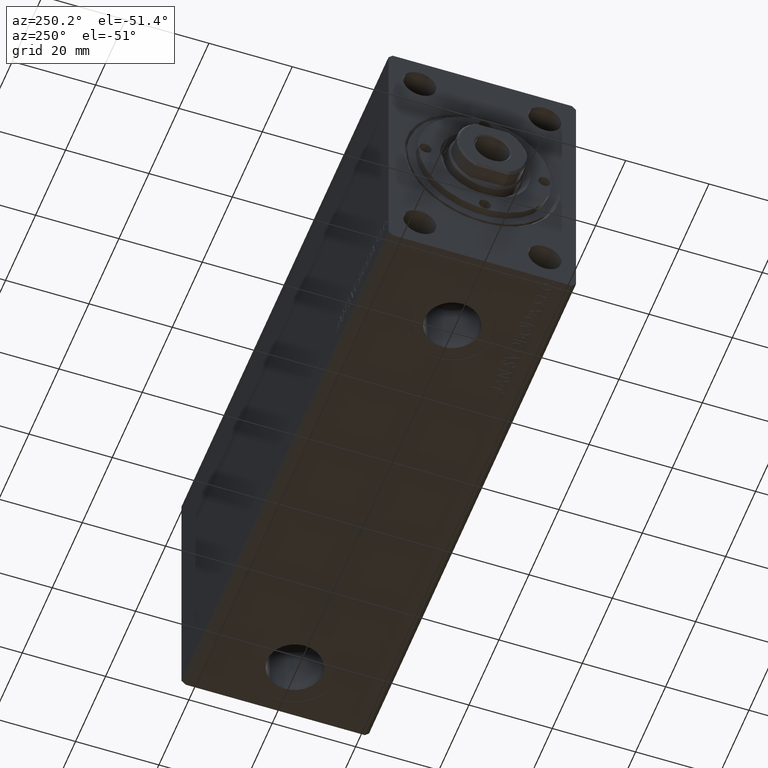
[diagram: clean part render]
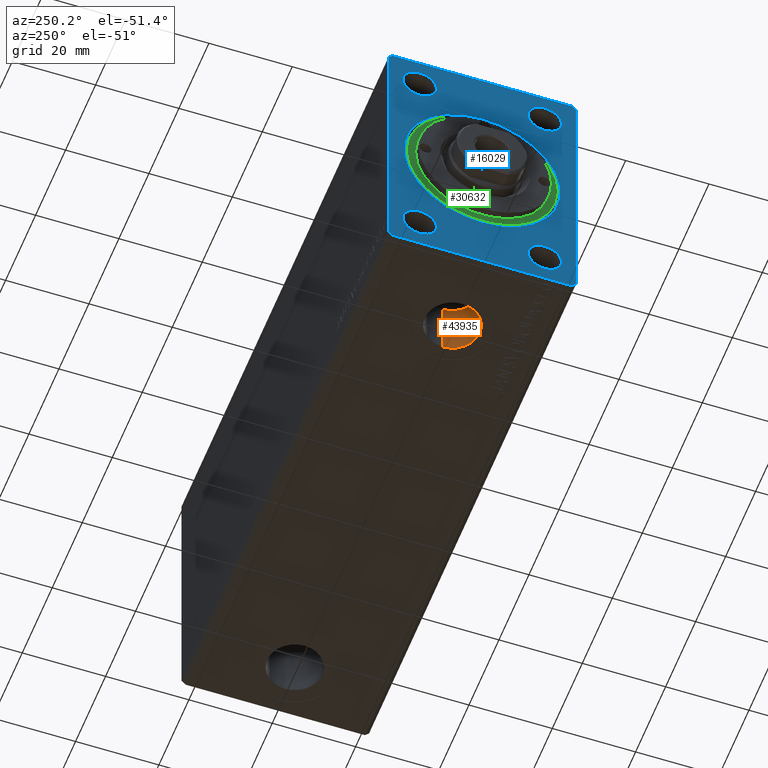
[diagram: same view with three faces highlighted in distinct colors, each labeled with its STEP entity id]
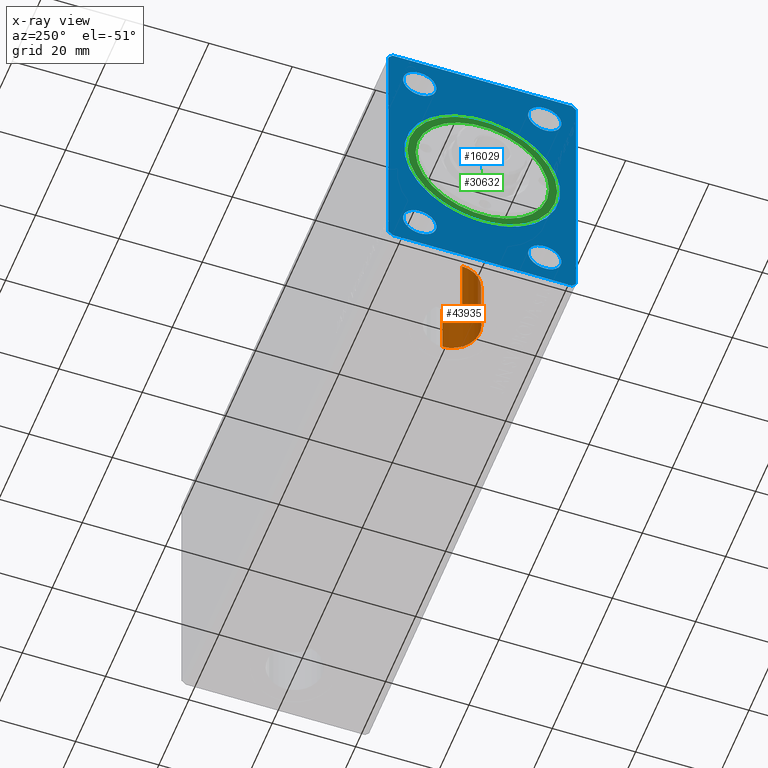
[diagram: x-ray of the same camera — body ghosted, the three highlighted faces saturated]
A machine part, auxiliary view with three faces highlighted in distinct colors.
The next image is the same camera in x-ray (body ghosted, the three faces saturated) — at least one of them is partly hidden behind the body in this view.
Their STEP definitions:

[orange] entity #43935 — the highlighted cylindrical surface (edge-blend (fillet) strip) has radius 6.58 mm, axis along (-0, -0, -1).
#199 = CYLINDRICAL_SURFACE ( 'NONE', #40097, 6.580000000000002736 ) ;
#2723 = EDGE_CURVE ( 'NONE', #35828, #34866, #33913, .T. ) ;
#2820 = CIRCLE ( 'NONE', #42760, 6.580000000000002736 ) ;
#4878 = DIRECTION ( 'NONE',  ( -1.000000000000000000, 0.000000000000000000, 0.000000000000000000 ) ) ;
#4980 = EDGE_CURVE ( 'NONE', #29053, #35828, #34258, .T. ) ;
#6164 = CARTESIAN_POINT ( 'NONE',  ( 13.41999999999999460, 2.578758962896938545E-15, -18.79999999999999716 ) ) ;
#7109 = DIRECTION ( 'NONE',  ( -0.000000000000000000, -0.000000000000000000, -1.000000000000000000 ) ) ;
#9040 = ORIENTED_EDGE ( 'NONE', *, *, #2723, .T. ) ;
#9668 = ORIENTED_EDGE ( 'NONE', *, *, #32509, .F. ) ;
#13143 = CARTESIAN_POINT ( 'NONE',  ( 19.99999999999999645, 2.578758962896938545E-15, -18.79999999999999716 ) ) ;
#14161 = CARTESIAN_POINT ( 'NONE',  ( 26.57999999999999829, 3.384576556735897587E-15, -18.79999999999999716 ) ) ;
#14676 = AXIS2_PLACEMENT_3D ( 'NONE', #32238, #25758, #25545 ) ;
#15436 = CARTESIAN_POINT ( 'NONE',  ( 13.41999999999999460, 2.578758962896938545E-15, -18.79999999999999716 ) ) ;
#16149 = ORIENTED_EDGE ( 'NONE', *, *, #4980, .T. ) ;
#16657 = CARTESIAN_POINT ( 'NONE',  ( 13.41999999999999460, 2.578758962896938545E-15, -32.39999999999999858 ) ) ;
#17700 = EDGE_CURVE ( 'NONE', #25770, #34866, #28609, .T. ) ;
#23415 = DIRECTION ( 'NONE',  ( -1.000000000000000000, 0.000000000000000000, 0.000000000000000000 ) ) ;
#24056 = CARTESIAN_POINT ( 'NONE',  ( 19.99999999999999645, 2.578758962896938545E-15, -18.79999999999999716 ) ) ;
#25545 = DIRECTION ( 'NONE',  ( -1.000000000000000000, 0.000000000000000000, 0.000000000000000000 ) ) ;
#25758 = DIRECTION ( 'NONE',  ( 0.000000000000000000, 0.000000000000000000, -1.000000000000000000 ) ) ;
#25770 = VERTEX_POINT ( 'NONE', #6164 ) ;
#26124 = DIRECTION ( 'NONE',  ( -0.000000000000000000, -0.000000000000000000, -1.000000000000000000 ) ) ;
#26842 = VECTOR ( 'NONE', #33815, 1000.000000000000000 ) ;
#27827 = ORIENTED_EDGE ( 'NONE', *, *, #17700, .F. ) ;
#28609 = LINE ( 'NONE', #15436, #30515 ) ;
#28797 = CARTESIAN_POINT ( 'NONE',  ( 26.57999999999999829, 3.384576556735897587E-15, -32.39999999999999858 ) ) ;
#29053 = VERTEX_POINT ( 'NONE', #42790 ) ;
#30515 = VECTOR ( 'NONE', #26124, 1000.000000000000000 ) ;
#30752 = FACE_OUTER_BOUND ( 'NONE', #38863, .T. ) ;
#32238 = CARTESIAN_POINT ( 'NONE',  ( 19.99999999999999645, 2.578758962896938545E-15, -32.39999999999999858 ) ) ;
#32509 = EDGE_CURVE ( 'NONE', #29053, #25770, #2820, .T. ) ;
#33815 = DIRECTION ( 'NONE',  ( -0.000000000000000000, -0.000000000000000000, -1.000000000000000000 ) ) ;
#33913 = CIRCLE ( 'NONE', #14676, 6.580000000000002736 ) ;
#34258 = LINE ( 'NONE', #14161, #26842 ) ;
#34866 = VERTEX_POINT ( 'NONE', #16657 ) ;
#35828 = VERTEX_POINT ( 'NONE', #28797 ) ;
#38863 = EDGE_LOOP ( 'NONE', ( #9668, #16149, #9040, #27827 ) ) ;
#40097 = AXIS2_PLACEMENT_3D ( 'NONE', #24056, #7109, #4878 ) ;
#40388 = DIRECTION ( 'NONE',  ( 0.000000000000000000, 0.000000000000000000, -1.000000000000000000 ) ) ;
#42760 = AXIS2_PLACEMENT_3D ( 'NONE', #13143, #40388, #23415 ) ;
#42790 = CARTESIAN_POINT ( 'NONE',  ( 26.57999999999999829, 3.384576556735897587E-15, -18.79999999999999716 ) ) ;
#43935 = ADVANCED_FACE ( 'NONE', ( #30752 ), #199, .F. ) ;

[blue] entity #16029 — the highlighted planar face has unit normal (1, 0, 0).
#322 = CARTESIAN_POINT ( 'NONE',  ( 3.061616997868395467E-16, -14.99999999999999645, -28.99999999999999645 ) ) ;
#417 = CARTESIAN_POINT ( 'NONE',  ( 0.000000000000000000, -21.50000000000001776, -32.50000000000000711 ) ) ;
#700 = VERTEX_POINT ( 'NONE', #9322 ) ;
#792 = ORIENTED_EDGE ( 'NONE', *, *, #25214, .T. ) ;
#1295 = FACE_BOUND ( 'NONE', #3102, .T. ) ;
#1510 = LINE ( 'NONE', #15103, #20460 ) ;
#1522 = FACE_BOUND ( 'NONE', #29025, .T. ) ;
#1572 = DIRECTION ( 'NONE',  ( 0.000000000000000000, 0.7071067811865474617, 0.7071067811865474617 ) ) ;
#1710 = CARTESIAN_POINT ( 'NONE',  ( 3.061616997868395467E-16, 15.00000000000000355, 21.00000000000000000 ) ) ;
#1853 = AXIS2_PLACEMENT_3D ( 'NONE', #43355, #39363, #22375 ) ;
#2031 = VECTOR ( 'NONE', #33614, 1000.000000000000114 ) ;
#2884 = DIRECTION ( 'NONE',  ( 0.000000000000000000, -1.000000000000000000, 0.000000000000000000 ) ) ;
#2999 = CARTESIAN_POINT ( 'NONE',  ( 0.000000000000000000, -21.50000000000001776, -32.50000000000000711 ) ) ;
#3000 = DIRECTION ( 'NONE',  ( 0.000000000000000000, 0.000000000000000000, 1.000000000000000000 ) ) ;
#3102 = EDGE_LOOP ( 'NONE', ( #18303, #11740 ) ) ;
#3295 = VECTOR ( 'NONE', #1572, 1000.000000000000114 ) ;
#3384 = DIRECTION ( 'NONE',  ( 0.000000000000000000, 0.000000000000000000, 1.000000000000000000 ) ) ;
#3777 = EDGE_CURVE ( 'NONE', #11148, #38973, #8482, .T. ) ;
#4010 = CIRCLE ( 'NONE', #9720, 18.69999999999999574 ) ;
#4882 = EDGE_LOOP ( 'NONE', ( #792, #36422 ) ) ;
#6003 = EDGE_CURVE ( 'NONE', #38973, #32636, #1510, .T. ) ;
#6182 = LINE ( 'NONE', #17303, #2031 ) ;
#6418 = AXIS2_PLACEMENT_3D ( 'NONE', #10801, #24405, #38032 ) ;
#6559 = ORIENTED_EDGE ( 'NONE', *, *, #6003, .F. ) ;
#7396 = EDGE_CURVE ( 'NONE', #32636, #31412, #6182, .T. ) ;
#7558 = VECTOR ( 'NONE', #13037, 1000.000000000000000 ) ;
#8482 = LINE ( 'NONE', #20787, #3295 ) ;
#8599 = VERTEX_POINT ( 'NONE', #1710 ) ;
#8781 = EDGE_CURVE ( 'NONE', #43835, #11148, #37590, .T. ) ;
#8986 = VECTOR ( 'NONE', #39118, 1000.000000000000114 ) ;
#9078 = DIRECTION ( 'NONE',  ( 0.000000000000000000, 0.000000000000000000, -1.000000000000000000 ) ) ;
#9147 = VERTEX_POINT ( 'NONE', #31264 ) ;
#9322 = CARTESIAN_POINT ( 'NONE',  ( 3.061616997868395467E-16, 15.00000000000000355, -28.99999999999999289 ) ) ;
#9652 = EDGE_CURVE ( 'NONE', #43766, #9147, #4010, .T. ) ;
#9720 = AXIS2_PLACEMENT_3D ( 'NONE', #33840, #13750, #34729 ) ;
#9990 = EDGE_CURVE ( 'NONE', #19894, #700, #13270, .T. ) ;
#10024 = CIRCLE ( 'NONE', #39304, 18.69999999999999574 ) ;
#10184 = CARTESIAN_POINT ( 'NONE',  ( 0.000000000000000000, -21.50000000000001421, 32.50000000000000000 ) ) ;
#10234 = VERTEX_POINT ( 'NONE', #23417 ) ;
#10297 = VECTOR ( 'NONE', #22786, 1000.000000000000000 ) ;
#10451 = CARTESIAN_POINT ( 'NONE',  ( 0.000000000000000000, 2.290089514405549716E-15, -18.69999999999999574 ) ) ;
#10801 = CARTESIAN_POINT ( 'NONE',  ( 3.061616997868395467E-16, -14.99999999999999645, -24.99999999999999645 ) ) ;
#11148 = VERTEX_POINT ( 'NONE', #23475 ) ;
#11356 = CARTESIAN_POINT ( 'NONE',  ( 0.000000000000000000, 22.49999999999999645, 31.50000000000000000 ) ) ;
#11359 = DIRECTION ( 'NONE',  ( -1.000000000000000000, -0.000000000000000000, -0.000000000000000000 ) ) ;
#11394 = CIRCLE ( 'NONE', #6418, 4.000000000000000000 ) ;
#11740 = ORIENTED_EDGE ( 'NONE', *, *, #32008, .F. ) ;
#11884 = CARTESIAN_POINT ( 'NONE',  ( 0.000000000000000000, -22.50000000000001421, -31.50000000000000711 ) ) ;
#12165 = AXIS2_PLACEMENT_3D ( 'NONE', #30768, #11359, #17598 ) ;
#12695 = VERTEX_POINT ( 'NONE', #21974 ) ;
#12943 = CARTESIAN_POINT ( 'NONE',  ( 0.000000000000000000, 0.000000000000000000, 0.000000000000000000 ) ) ;
#13037 = DIRECTION ( 'NONE',  ( 0.000000000000000000, 1.000000000000000000, 1.613696256722610912E-16 ) ) ;
#13270 = CIRCLE ( 'NONE', #33916, 4.000000000000000000 ) ;
#13750 = DIRECTION ( 'NONE',  ( 1.000000000000000000, 0.000000000000000000, 0.000000000000000000 ) ) ;
#14149 = DIRECTION ( 'NONE',  ( -1.000000000000000000, -0.000000000000000000, -0.000000000000000000 ) ) ;
#14345 = VERTEX_POINT ( 'NONE', #41441 ) ;
#14540 = ORIENTED_EDGE ( 'NONE', *, *, #42659, .F. ) ;
#14611 = ORIENTED_EDGE ( 'NONE', *, *, #28415, .F. ) ;
#14671 = EDGE_LOOP ( 'NONE', ( #15829, #6559, #41565, #25113, #14611, #35668, #40305, #30035 ) ) ;
#14888 = FACE_BOUND ( 'NONE', #21985, .T. ) ;
#15103 = CARTESIAN_POINT ( 'NONE',  ( 0.000000000000000000, 22.49999999999999645, -31.50000000000000000 ) ) ;
#15549 = DIRECTION ( 'NONE',  ( 1.000000000000000000, 0.000000000000000000, 0.000000000000000000 ) ) ;
#15829 = ORIENTED_EDGE ( 'NONE', *, *, #7396, .F. ) ;
#15874 = ORIENTED_EDGE ( 'NONE', *, *, #39483, .F. ) ;
#16029 = ADVANCED_FACE ( 'NONE', ( #1295, #22249, #14888, #1522, #22027, #25812 ), #38781, .F. ) ;
#16753 = AXIS2_PLACEMENT_3D ( 'NONE', #36271, #26421, #40055 ) ;
#17229 = CIRCLE ( 'NONE', #22228, 4.000000000000000000 ) ;
#17267 = AXIS2_PLACEMENT_3D ( 'NONE', #32758, #42819, #19569 ) ;
#17303 = CARTESIAN_POINT ( 'NONE',  ( 0.000000000000000000, 22.49999999999999645, 31.50000000000000000 ) ) ;
#17598 = DIRECTION ( 'NONE',  ( 0.000000000000000000, 0.000000000000000000, 1.000000000000000000 ) ) ;
#18303 = ORIENTED_EDGE ( 'NONE', *, *, #34572, .F. ) ;
#18566 = LINE ( 'NONE', #11884, #8986 ) ;
#18643 = CARTESIAN_POINT ( 'NONE',  ( 0.000000000000000000, -22.50000000000001421, -31.50000000000000711 ) ) ;
#18790 = CARTESIAN_POINT ( 'NONE',  ( 0.000000000000000000, -22.50000000000001776, 31.50000000000000000 ) ) ;
#19423 = AXIS2_PLACEMENT_3D ( 'NONE', #30878, #40274, #3000 ) ;
#19569 = DIRECTION ( 'NONE',  ( 0.000000000000000000, 0.000000000000000000, 1.000000000000000000 ) ) ;
#19894 = VERTEX_POINT ( 'NONE', #30415 ) ;
#20203 = VERTEX_POINT ( 'NONE', #10184 ) ;
#20460 = VECTOR ( 'NONE', #42348, 1000.000000000000000 ) ;
#20787 = CARTESIAN_POINT ( 'NONE',  ( 0.000000000000000000, 21.49999999999999645, -32.50000000000000000 ) ) ;
#20816 = ORIENTED_EDGE ( 'NONE', *, *, #30885, .F. ) ;
#21404 = LINE ( 'NONE', #25418, #42055 ) ;
#21453 = CIRCLE ( 'NONE', #17267, 4.000000000000000000 ) ;
#21541 = EDGE_CURVE ( 'NONE', #39492, #27120, #11394, .T. ) ;
#21820 = VERTEX_POINT ( 'NONE', #39528 ) ;
#21974 = CARTESIAN_POINT ( 'NONE',  ( 3.061616997868395467E-16, -14.99999999999999645, 20.99999999999999645 ) ) ;
#21985 = EDGE_LOOP ( 'NONE', ( #38458, #14540 ) ) ;
#22027 = FACE_BOUND ( 'NONE', #4882, .T. ) ;
#22043 = EDGE_CURVE ( 'NONE', #20203, #10234, #21404, .T. ) ;
#22228 = AXIS2_PLACEMENT_3D ( 'NONE', #30280, #14149, #27755 ) ;
#22249 = FACE_BOUND ( 'NONE', #27943, .T. ) ;
#22375 = DIRECTION ( 'NONE',  ( 0.000000000000000000, 0.000000000000000000, 1.000000000000000000 ) ) ;
#22631 = AXIS2_PLACEMENT_3D ( 'NONE', #39655, #15549, #9078 ) ;
#22786 = DIRECTION ( 'NONE',  ( 0.000000000000000000, 5.507058653894625853E-17, -1.000000000000000000 ) ) ;
#23417 = CARTESIAN_POINT ( 'NONE',  ( 0.000000000000000000, -22.50000000000001776, 31.50000000000000000 ) ) ;
#23475 = CARTESIAN_POINT ( 'NONE',  ( 0.000000000000000000, 21.49999999999999645, -32.50000000000000000 ) ) ;
#23688 = DIRECTION ( 'NONE',  ( -1.000000000000000000, -0.000000000000000000, -0.000000000000000000 ) ) ;
#24405 = DIRECTION ( 'NONE',  ( -1.000000000000000000, -0.000000000000000000, -0.000000000000000000 ) ) ;
#25113 = ORIENTED_EDGE ( 'NONE', *, *, #8781, .F. ) ;
#25214 = EDGE_CURVE ( 'NONE', #9147, #43766, #10024, .T. ) ;
#25418 = CARTESIAN_POINT ( 'NONE',  ( 0.000000000000000000, -21.50000000000001421, 32.50000000000000000 ) ) ;
#25812 = FACE_OUTER_BOUND ( 'NONE', #14671, .T. ) ;
#26421 = DIRECTION ( 'NONE',  ( -1.000000000000000000, -0.000000000000000000, -0.000000000000000000 ) ) ;
#26556 = DIRECTION ( 'NONE',  ( 1.000000000000000000, 0.000000000000000000, 0.000000000000000000 ) ) ;
#27120 = VERTEX_POINT ( 'NONE', #39286 ) ;
#27755 = DIRECTION ( 'NONE',  ( 0.000000000000000000, 0.000000000000000000, 1.000000000000000000 ) ) ;
#27943 = EDGE_LOOP ( 'NONE', ( #35261, #42473 ) ) ;
#28415 = EDGE_CURVE ( 'NONE', #30749, #43835, #18566, .T. ) ;
#28501 = EDGE_CURVE ( 'NONE', #10234, #30749, #29912, .T. ) ;
#29025 = EDGE_LOOP ( 'NONE', ( #15874, #20816 ) ) ;
#29456 = CARTESIAN_POINT ( 'NONE',  ( 0.000000000000000000, 21.49999999999999645, 32.50000000000000000 ) ) ;
#29912 = LINE ( 'NONE', #18790, #10297 ) ;
#30035 = ORIENTED_EDGE ( 'NONE', *, *, #38741, .F. ) ;
#30280 = CARTESIAN_POINT ( 'NONE',  ( 3.061616997868395467E-16, 15.00000000000000355, -24.99999999999999289 ) ) ;
#30415 = CARTESIAN_POINT ( 'NONE',  ( 3.061616997868395467E-16, 15.00000000000000355, -20.99999999999999289 ) ) ;
#30749 = VERTEX_POINT ( 'NONE', #18643 ) ;
#30768 = CARTESIAN_POINT ( 'NONE',  ( 3.061616997868395467E-16, 15.00000000000000355, 25.00000000000000000 ) ) ;
#30878 = CARTESIAN_POINT ( 'NONE',  ( 3.061616997868395467E-16, -14.99999999999999645, 24.99999999999999645 ) ) ;
#30885 = EDGE_CURVE ( 'NONE', #12695, #14345, #36028, .T. ) ;
#31264 = CARTESIAN_POINT ( 'NONE',  ( 0.000000000000000000, 0.000000000000000000, 18.69999999999999574 ) ) ;
#31412 = VERTEX_POINT ( 'NONE', #43888 ) ;
#31897 = DIRECTION ( 'NONE',  ( 0.000000000000000000, -0.7071067811865474617, -0.7071067811865474617 ) ) ;
#32008 = EDGE_CURVE ( 'NONE', #8599, #21820, #40312, .T. ) ;
#32636 = VERTEX_POINT ( 'NONE', #11356 ) ;
#32758 = CARTESIAN_POINT ( 'NONE',  ( 3.061616997868395467E-16, -14.99999999999999645, -24.99999999999999645 ) ) ;
#33461 = LINE ( 'NONE', #29456, #37198 ) ;
#33614 = DIRECTION ( 'NONE',  ( 0.000000000000000000, -0.7071067811865474617, 0.7071067811865474617 ) ) ;
#33840 = CARTESIAN_POINT ( 'NONE',  ( 0.000000000000000000, 0.000000000000000000, 0.000000000000000000 ) ) ;
#33916 = AXIS2_PLACEMENT_3D ( 'NONE', #34174, #23688, #3384 ) ;
#34174 = CARTESIAN_POINT ( 'NONE',  ( 3.061616997868395467E-16, 15.00000000000000355, -24.99999999999999289 ) ) ;
#34572 = EDGE_CURVE ( 'NONE', #21820, #8599, #43508, .T. ) ;
#34729 = DIRECTION ( 'NONE',  ( 0.000000000000000000, 0.000000000000000000, -1.000000000000000000 ) ) ;
#35261 = ORIENTED_EDGE ( 'NONE', *, *, #39872, .F. ) ;
#35668 = ORIENTED_EDGE ( 'NONE', *, *, #28501, .F. ) ;
#36028 = CIRCLE ( 'NONE', #16753, 4.000000000000000000 ) ;
#36271 = CARTESIAN_POINT ( 'NONE',  ( 3.061616997868395467E-16, -14.99999999999999645, 24.99999999999999645 ) ) ;
#36422 = ORIENTED_EDGE ( 'NONE', *, *, #9652, .T. ) ;
#36617 = DIRECTION ( 'NONE',  ( 0.000000000000000000, 0.000000000000000000, -1.000000000000000000 ) ) ;
#37198 = VECTOR ( 'NONE', #2884, 1000.000000000000000 ) ;
#37590 = LINE ( 'NONE', #2999, #7558 ) ;
#38032 = DIRECTION ( 'NONE',  ( 0.000000000000000000, 0.000000000000000000, 1.000000000000000000 ) ) ;
#38127 = CARTESIAN_POINT ( 'NONE',  ( 0.000000000000000000, 22.49999999999999645, -31.50000000000000000 ) ) ;
#38458 = ORIENTED_EDGE ( 'NONE', *, *, #9990, .F. ) ;
#38576 = CIRCLE ( 'NONE', #19423, 4.000000000000000000 ) ;
#38741 = EDGE_CURVE ( 'NONE', #31412, #20203, #33461, .T. ) ;
#38781 = PLANE ( 'NONE',  #22631 ) ;
#38973 = VERTEX_POINT ( 'NONE', #38127 ) ;
#39118 = DIRECTION ( 'NONE',  ( 0.000000000000000000, 0.7071067811865451302, -0.7071067811865500152 ) ) ;
#39286 = CARTESIAN_POINT ( 'NONE',  ( 3.061616997868395467E-16, -14.99999999999999645, -20.99999999999999645 ) ) ;
#39304 = AXIS2_PLACEMENT_3D ( 'NONE', #12943, #26556, #36617 ) ;
#39363 = DIRECTION ( 'NONE',  ( -1.000000000000000000, -0.000000000000000000, -0.000000000000000000 ) ) ;
#39483 = EDGE_CURVE ( 'NONE', #14345, #12695, #38576, .T. ) ;
#39492 = VERTEX_POINT ( 'NONE', #322 ) ;
#39528 = CARTESIAN_POINT ( 'NONE',  ( 3.061616997868395467E-16, 15.00000000000000355, 29.00000000000000000 ) ) ;
#39655 = CARTESIAN_POINT ( 'NONE',  ( 0.000000000000000000, 0.000000000000000000, 0.000000000000000000 ) ) ;
#39872 = EDGE_CURVE ( 'NONE', #27120, #39492, #21453, .T. ) ;
#40055 = DIRECTION ( 'NONE',  ( 0.000000000000000000, 0.000000000000000000, 1.000000000000000000 ) ) ;
#40274 = DIRECTION ( 'NONE',  ( -1.000000000000000000, -0.000000000000000000, -0.000000000000000000 ) ) ;
#40305 = ORIENTED_EDGE ( 'NONE', *, *, #22043, .F. ) ;
#40312 = CIRCLE ( 'NONE', #1853, 4.000000000000000000 ) ;
#41441 = CARTESIAN_POINT ( 'NONE',  ( 3.061616997868395467E-16, -14.99999999999999645, 28.99999999999999645 ) ) ;
#41565 = ORIENTED_EDGE ( 'NONE', *, *, #3777, .F. ) ;
#42055 = VECTOR ( 'NONE', #31897, 1000.000000000000114 ) ;
#42348 = DIRECTION ( 'NONE',  ( 0.000000000000000000, 0.000000000000000000, 1.000000000000000000 ) ) ;
#42473 = ORIENTED_EDGE ( 'NONE', *, *, #21541, .F. ) ;
#42659 = EDGE_CURVE ( 'NONE', #700, #19894, #17229, .T. ) ;
#42819 = DIRECTION ( 'NONE',  ( -1.000000000000000000, -0.000000000000000000, -0.000000000000000000 ) ) ;
#43355 = CARTESIAN_POINT ( 'NONE',  ( 3.061616997868395467E-16, 15.00000000000000355, 25.00000000000000000 ) ) ;
#43508 = CIRCLE ( 'NONE', #12165, 4.000000000000000000 ) ;
#43766 = VERTEX_POINT ( 'NONE', #10451 ) ;
#43835 = VERTEX_POINT ( 'NONE', #417 ) ;
#43888 = CARTESIAN_POINT ( 'NONE',  ( 0.000000000000000000, 21.49999999999999645, 32.50000000000000000 ) ) ;

[green] entity #30632 — the highlighted planar face has unit normal (-1, 0, 0).
#357 = DIRECTION ( 'NONE',  ( 0.000000000000000000, 0.000000000000000000, 1.000000000000000000 ) ) ;
#387 = CIRCLE ( 'NONE', #18893, 18.00000000000000000 ) ;
#614 = EDGE_CURVE ( 'NONE', #1536, #23010, #40298, .T. ) ;
#1536 = VERTEX_POINT ( 'NONE', #17325 ) ;
#3250 = DIRECTION ( 'NONE',  ( 1.000000000000000000, 0.000000000000000000, -0.000000000000000000 ) ) ;
#3515 = ORIENTED_EDGE ( 'NONE', *, *, #7949, .T. ) ;
#3607 = CARTESIAN_POINT ( 'NONE',  ( 18.00000000000000000, 2.204364238465235428E-15, 5.200000000000000178 ) ) ;
#4140 = CIRCLE ( 'NONE', #14087, 18.00000000000000000 ) ;
#4647 = CARTESIAN_POINT ( 'NONE',  ( -18.00000000000000000, 0.000000000000000000, 5.200000000000000178 ) ) ;
#5299 = CARTESIAN_POINT ( 'NONE',  ( 16.00000000000000000, 1.959434878635765131E-15, 5.200000000000000178 ) ) ;
#6541 = EDGE_CURVE ( 'NONE', #30532, #40252, #4140, .T. ) ;
#7198 = ORIENTED_EDGE ( 'NONE', *, *, #614, .F. ) ;
#7949 = EDGE_CURVE ( 'NONE', #40252, #30532, #387, .T. ) ;
#8556 = CARTESIAN_POINT ( 'NONE',  ( 0.000000000000000000, 0.000000000000000000, 5.200000000000000178 ) ) ;
#8736 = DIRECTION ( 'NONE',  ( 1.000000000000000000, 0.000000000000000000, 0.000000000000000000 ) ) ;
#9228 = EDGE_CURVE ( 'NONE', #23010, #1536, #9690, .T. ) ;
#9690 = CIRCLE ( 'NONE', #34619, 16.00000000000000000 ) ;
#10848 = DIRECTION ( 'NONE',  ( 0.000000000000000000, 0.000000000000000000, 1.000000000000000000 ) ) ;
#12286 = CARTESIAN_POINT ( 'NONE',  ( 0.000000000000000000, 0.000000000000000000, 5.200000000000000178 ) ) ;
#12807 = EDGE_LOOP ( 'NONE', ( #7198, #35982 ) ) ;
#13188 = AXIS2_PLACEMENT_3D ( 'NONE', #33613, #357, #3250 ) ;
#13292 = FACE_OUTER_BOUND ( 'NONE', #22209, .T. ) ;
#14087 = AXIS2_PLACEMENT_3D ( 'NONE', #8556, #42478, #38907 ) ;
#16050 = DIRECTION ( 'NONE',  ( 1.000000000000000000, 0.000000000000000000, 0.000000000000000000 ) ) ;
#17325 = CARTESIAN_POINT ( 'NONE',  ( -16.00000000000000000, 0.000000000000000000, 5.200000000000000178 ) ) ;
#18893 = AXIS2_PLACEMENT_3D ( 'NONE', #12286, #25891, #16050 ) ;
#19207 = DIRECTION ( 'NONE',  ( 0.000000000000000000, 0.000000000000000000, 1.000000000000000000 ) ) ;
#21103 = CARTESIAN_POINT ( 'NONE',  ( 0.000000000000000000, 0.000000000000000000, 5.200000000000000178 ) ) ;
#22209 = EDGE_LOOP ( 'NONE', ( #44092, #3515 ) ) ;
#23010 = VERTEX_POINT ( 'NONE', #5299 ) ;
#25891 = DIRECTION ( 'NONE',  ( 0.000000000000000000, 0.000000000000000000, 1.000000000000000000 ) ) ;
#26906 = FACE_BOUND ( 'NONE', #12807, .T. ) ;
#30532 = VERTEX_POINT ( 'NONE', #4647 ) ;
#30632 = ADVANCED_FACE ( 'NONE', ( #26906, #13292 ), #36969, .T. ) ;
#33613 = CARTESIAN_POINT ( 'NONE',  ( 0.000000000000000000, 0.000000000000000000, 5.200000000000000178 ) ) ;
#34619 = AXIS2_PLACEMENT_3D ( 'NONE', #39314, #19207, #8736 ) ;
#34726 = DIRECTION ( 'NONE',  ( 1.000000000000000000, 0.000000000000000000, 0.000000000000000000 ) ) ;
#35982 = ORIENTED_EDGE ( 'NONE', *, *, #9228, .F. ) ;
#36969 = PLANE ( 'NONE',  #13188 ) ;
#38907 = DIRECTION ( 'NONE',  ( 1.000000000000000000, 0.000000000000000000, 0.000000000000000000 ) ) ;
#39314 = CARTESIAN_POINT ( 'NONE',  ( 0.000000000000000000, 0.000000000000000000, 5.200000000000000178 ) ) ;
#39606 = AXIS2_PLACEMENT_3D ( 'NONE', #21103, #10848, #34726 ) ;
#40252 = VERTEX_POINT ( 'NONE', #3607 ) ;
#40298 = CIRCLE ( 'NONE', #39606, 16.00000000000000000 ) ;
#42478 = DIRECTION ( 'NONE',  ( 0.000000000000000000, 0.000000000000000000, 1.000000000000000000 ) ) ;
#44092 = ORIENTED_EDGE ( 'NONE', *, *, #6541, .T. ) ;